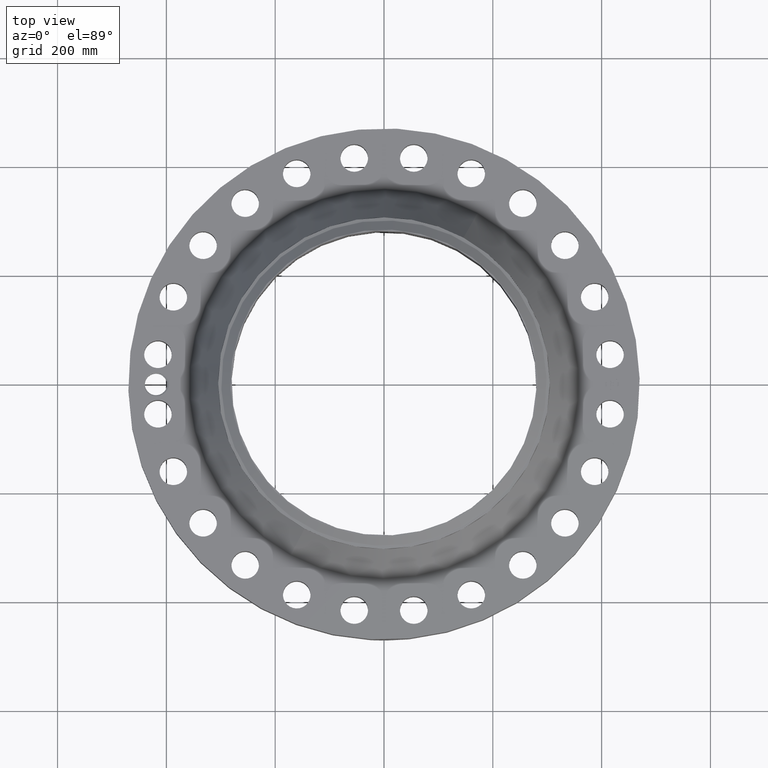
[diagram: clean part render]
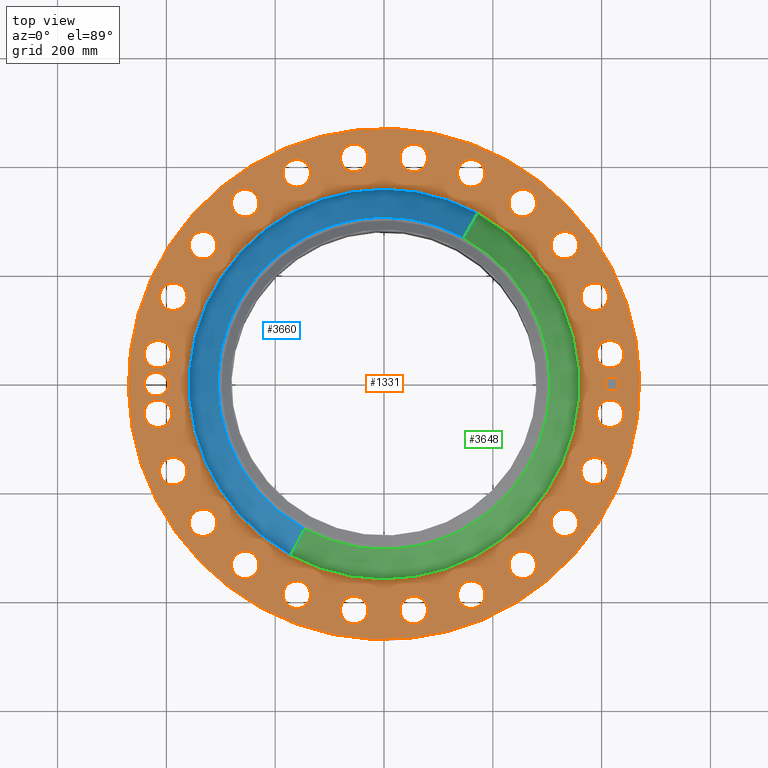
[diagram: same view with three faces highlighted in distinct colors, each labeled with its STEP entity id]
A machine part, top view with three faces highlighted in distinct colors.
Their STEP definitions:

[orange] entity #1331 — the highlighted planar face has unit normal (0, 0, -1).
#58=AXIS2_PLACEMENT_3D('Circle Axis2P3D',#56,#57,$) ;
#693=AXIS2_PLACEMENT_3D('Circle Axis2P3D',#691,#692,$) ;
#793=AXIS2_PLACEMENT_3D('Plane Axis2P3D',#790,#791,#792) ;
#847=AXIS2_PLACEMENT_3D('Circle Axis2P3D',#845,#846,$) ;
#854=AXIS2_PLACEMENT_3D('Circle Axis2P3D',#852,#853,$) ;
#865=AXIS2_PLACEMENT_3D('Circle Axis2P3D',#863,#864,$) ;
#874=AXIS2_PLACEMENT_3D('Circle Axis2P3D',#872,#873,$) ;
#883=AXIS2_PLACEMENT_3D('Circle Axis2P3D',#881,#882,$) ;
#892=AXIS2_PLACEMENT_3D('Circle Axis2P3D',#890,#891,$) ;
#901=AXIS2_PLACEMENT_3D('Circle Axis2P3D',#899,#900,$) ;
#910=AXIS2_PLACEMENT_3D('Circle Axis2P3D',#908,#909,$) ;
#919=AXIS2_PLACEMENT_3D('Circle Axis2P3D',#917,#918,$) ;
#928=AXIS2_PLACEMENT_3D('Circle Axis2P3D',#926,#927,$) ;
#937=AXIS2_PLACEMENT_3D('Circle Axis2P3D',#935,#936,$) ;
#946=AXIS2_PLACEMENT_3D('Circle Axis2P3D',#944,#945,$) ;
#955=AXIS2_PLACEMENT_3D('Circle Axis2P3D',#953,#954,$) ;
#964=AXIS2_PLACEMENT_3D('Circle Axis2P3D',#962,#963,$) ;
#973=AXIS2_PLACEMENT_3D('Circle Axis2P3D',#971,#972,$) ;
#982=AXIS2_PLACEMENT_3D('Circle Axis2P3D',#980,#981,$) ;
#991=AXIS2_PLACEMENT_3D('Circle Axis2P3D',#989,#990,$) ;
#1000=AXIS2_PLACEMENT_3D('Circle Axis2P3D',#998,#999,$) ;
#1009=AXIS2_PLACEMENT_3D('Circle Axis2P3D',#1007,#1008,$) ;
#1018=AXIS2_PLACEMENT_3D('Circle Axis2P3D',#1016,#1017,$) ;
#1027=AXIS2_PLACEMENT_3D('Circle Axis2P3D',#1025,#1026,$) ;
#1036=AXIS2_PLACEMENT_3D('Circle Axis2P3D',#1034,#1035,$) ;
#1045=AXIS2_PLACEMENT_3D('Circle Axis2P3D',#1043,#1044,$) ;
#1054=AXIS2_PLACEMENT_3D('Circle Axis2P3D',#1052,#1053,$) ;
#1063=AXIS2_PLACEMENT_3D('Circle Axis2P3D',#1061,#1062,$) ;
#1072=AXIS2_PLACEMENT_3D('Circle Axis2P3D',#1070,#1071,$) ;
#1081=AXIS2_PLACEMENT_3D('Circle Axis2P3D',#1079,#1080,$) ;
#1090=AXIS2_PLACEMENT_3D('Circle Axis2P3D',#1088,#1089,$) ;
#1099=AXIS2_PLACEMENT_3D('Circle Axis2P3D',#1097,#1098,$) ;
#1108=AXIS2_PLACEMENT_3D('Circle Axis2P3D',#1106,#1107,$) ;
#1117=AXIS2_PLACEMENT_3D('Circle Axis2P3D',#1115,#1116,$) ;
#1126=AXIS2_PLACEMENT_3D('Circle Axis2P3D',#1124,#1125,$) ;
#1135=AXIS2_PLACEMENT_3D('Circle Axis2P3D',#1133,#1134,$) ;
#1144=AXIS2_PLACEMENT_3D('Circle Axis2P3D',#1142,#1143,$) ;
#1153=AXIS2_PLACEMENT_3D('Circle Axis2P3D',#1151,#1152,$) ;
#1162=AXIS2_PLACEMENT_3D('Circle Axis2P3D',#1160,#1161,$) ;
#1171=AXIS2_PLACEMENT_3D('Circle Axis2P3D',#1169,#1170,$) ;
#1180=AXIS2_PLACEMENT_3D('Circle Axis2P3D',#1178,#1179,$) ;
#1189=AXIS2_PLACEMENT_3D('Circle Axis2P3D',#1187,#1188,$) ;
#1198=AXIS2_PLACEMENT_3D('Circle Axis2P3D',#1196,#1197,$) ;
#1207=AXIS2_PLACEMENT_3D('Circle Axis2P3D',#1205,#1206,$) ;
#1216=AXIS2_PLACEMENT_3D('Circle Axis2P3D',#1214,#1215,$) ;
#1225=AXIS2_PLACEMENT_3D('Circle Axis2P3D',#1223,#1224,$) ;
#1234=AXIS2_PLACEMENT_3D('Circle Axis2P3D',#1232,#1233,$) ;
#1243=AXIS2_PLACEMENT_3D('Circle Axis2P3D',#1241,#1242,$) ;
#1252=AXIS2_PLACEMENT_3D('Circle Axis2P3D',#1250,#1251,$) ;
#1261=AXIS2_PLACEMENT_3D('Circle Axis2P3D',#1259,#1260,$) ;
#1270=AXIS2_PLACEMENT_3D('Circle Axis2P3D',#1268,#1269,$) ;
#1279=AXIS2_PLACEMENT_3D('Circle Axis2P3D',#1277,#1278,$) ;
#1288=AXIS2_PLACEMENT_3D('Circle Axis2P3D',#1286,#1287,$) ;
#1297=AXIS2_PLACEMENT_3D('Circle Axis2P3D',#1295,#1296,$) ;
#1306=AXIS2_PLACEMENT_3D('Circle Axis2P3D',#1304,#1305,$) ;
#1315=AXIS2_PLACEMENT_3D('Circle Axis2P3D',#1313,#1314,$) ;
#1324=AXIS2_PLACEMENT_3D('Circle Axis2P3D',#1322,#1323,$) ;
#53=CARTESIAN_POINT('Vertex',(-8.86937246421,-16.235277395,4.25000000002)) ;
#56=CARTESIAN_POINT('Axis2P3D Location',(0.,0.,4.25000000002)) ;
#60=CARTESIAN_POINT('Vertex',(8.86937246421,16.235277395,4.25000000002)) ;
#691=CARTESIAN_POINT('Axis2P3D Location',(0.,0.,4.25000000002)) ;
#790=CARTESIAN_POINT('Axis2P3D Location',(0.,18.5000000001,4.25000000002)) ;
#800=CARTESIAN_POINT('Control Point',(-15.5625000001,-2.23792987641E-015,4.25000000002)) ;
#801=CARTESIAN_POINT('Control Point',(-15.5658486118,0.0752397331611,4.25000000002)) ;
#802=CARTESIAN_POINT('Control Point',(-15.5767532061,0.149986999675,4.25000000002)) ;
#803=CARTESIAN_POINT('Control Point',(-15.5951503556,0.223216978299,4.25000000002)) ;
#804=CARTESIAN_POINT('Control Point',(-15.6463729581,0.364618328847,4.25000000002)) ;
#805=CARTESIAN_POINT('Control Point',(-15.7245963109,0.49227424773,4.25000000002)) ;
#806=CARTESIAN_POINT('Control Point',(-15.7699947014,0.551754606041,4.25000000002)) ;
#807=CARTESIAN_POINT('Control Point',(-15.8720310465,0.660346585055,4.25000000002)) ;
#808=CARTESIAN_POINT('Control Point',(-15.9934278606,0.745630400099,4.25000000002)) ;
#809=CARTESIAN_POINT('Control Point',(-16.0581601455,0.78177653975,4.25000000002)) ;
#810=CARTESIAN_POINT('Control Point',(-16.1712136608,0.830357940917,4.25000000002)) ;
#811=CARTESIAN_POINT('Control Point',(-16.290102158,0.858710423939,4.25000000002)) ;
#812=CARTESIAN_POINT('Control Point',(-16.3382768054,0.866725028394,4.25000000002)) ;
#813=CARTESIAN_POINT('Control Point',(-16.4180331567,0.874371070311,4.25000000002)) ;
#814=CARTESIAN_POINT('Control Point',(-16.4977855256,0.872912340698,4.25000000002)) ;
#815=CARTESIAN_POINT('Control Point',(-16.5289669807,0.870941301126,4.25000000002)) ;
#816=CARTESIAN_POINT('Control Point',(-16.5599797145,0.867579220416,4.25000000002)) ;
#817=CARTESIAN_POINT('Control Point',(-16.5907413594,0.862841680557,4.25000000002)) ;
#818=CARTESIAN_POINT('Vertex',(-15.5625000001,-2.23792987641E-015,4.25000000002)) ;
#820=CARTESIAN_POINT('Vertex',(-16.5907413594,0.862841680557,4.25000000002)) ;
#824=CARTESIAN_POINT('Control Point',(-15.5625000001,0.,4.25000000002)) ;
#825=CARTESIAN_POINT('Control Point',(-15.5658491807,-0.0752525151098,4.25000000002)) ;
#826=CARTESIAN_POINT('Control Point',(-15.5767569074,-0.150012395308,4.25000000002)) ;
#827=CARTESIAN_POINT('Control Point',(-15.5951533094,-0.223239987657,4.25000000002)) ;
#828=CARTESIAN_POINT('Control Point',(-15.6463784544,-0.364651733392,4.25000000002)) ;
#829=CARTESIAN_POINT('Control Point',(-15.7245736828,-0.492256823696,4.25000000002)) ;
#830=CARTESIAN_POINT('Control Point',(-15.7699609339,-0.551715870215,4.25000000002)) ;
#831=CARTESIAN_POINT('Control Point',(-15.8719890013,-0.66030245182,4.25000000002)) ;
#832=CARTESIAN_POINT('Control Point',(-15.9933301524,-0.745568300543,4.25000000002)) ;
#833=CARTESIAN_POINT('Control Point',(-16.0580543193,-0.781724351964,4.25000000002)) ;
#834=CARTESIAN_POINT('Control Point',(-16.1936450141,-0.840027215184,4.25000000002)) ;
#835=CARTESIAN_POINT('Control Point',(-16.3376796608,-0.869225054135,4.25000000002)) ;
#836=CARTESIAN_POINT('Control Point',(-16.4107745553,-0.87625079545,4.25000000002)) ;
#837=CARTESIAN_POINT('Control Point',(-16.4909460702,-0.875557265606,4.25000000002)) ;
#838=CARTESIAN_POINT('Control Point',(-16.5699063854,-0.865829464516,4.25000000002)) ;
#839=CARTESIAN_POINT('Control Point',(-16.5768185622,-0.864907315477,4.25000000002)) ;
#840=CARTESIAN_POINT('Control Point',(-16.5837195816,-0.86391598773,4.25000000002)) ;
#841=CARTESIAN_POINT('Control Point',(-16.5906085073,-0.86285564171,4.25000000002)) ;
#842=CARTESIAN_POINT('Vertex',(-16.5906085073,-0.86285564171,4.25000000002)) ;
#845=CARTESIAN_POINT('Axis2P3D Location',(-16.5000000001,2.01413688877E-014,4.25000000002)) ;
#849=CARTESIAN_POINT('Vertex',(-17.2613906308,0.415949597295,4.25000000002)) ;
#852=CARTESIAN_POINT('Axis2P3D Location',(-16.5000000001,2.01413688877E-014,4.25000000002)) ;
#863=CARTESIAN_POINT('Axis2P3D Location',(16.3588402127,-2.15368217164,4.25000000002)) ;
#867=CARTESIAN_POINT('Vertex',(15.4812576508,-1.67425663303,4.25000000002)) ;
#869=CARTESIAN_POINT('Vertex',(17.2364227746,-2.63310771025,4.25000000002)) ;
#872=CARTESIAN_POINT('Axis2P3D Location',(16.3588402127,-2.15368217164,4.25000000002)) ;
#881=CARTESIAN_POINT('Axis2P3D Location',(0.,0.,4.25000000002)) ;
#885=CARTESIAN_POINT('Vertex',(-6.80280215047,-12.4524458097,4.25000000002)) ;
#887=CARTESIAN_POINT('Vertex',(6.80280215047,12.4524458097,4.25000000002)) ;
#890=CARTESIAN_POINT('Axis2P3D Location',(0.,0.,4.25000000002)) ;
#899=CARTESIAN_POINT('Axis2P3D Location',(15.2440122865,-6.31427663405,4.25000000002)) ;
#903=CARTESIAN_POINT('Vertex',(15.9676074876,-7.00450122424,4.25000000002)) ;
#905=CARTESIAN_POINT('Vertex',(14.5204170854,-5.62405204386,4.25000000002)) ;
#908=CARTESIAN_POINT('Axis2P3D Location',(15.2440122865,-6.31427663405,4.25000000002)) ;
#917=CARTESIAN_POINT('Axis2P3D Location',(13.0903301149,-10.0445635787,4.25000000002)) ;
#921=CARTESIAN_POINT('Vertex',(13.6106261381,-10.8985495553,4.25000000002)) ;
#923=CARTESIAN_POINT('Vertex',(12.5700340916,-9.19057760208,4.25000000002)) ;
#926=CARTESIAN_POINT('Axis2P3D Location',(13.0903301149,-10.0445635787,4.25000000002)) ;
#935=CARTESIAN_POINT('Axis2P3D Location',(10.0445635787,-13.0903301149,4.25000000002)) ;
#939=CARTESIAN_POINT('Vertex',(10.3261031098,-14.0498797448,4.25000000002)) ;
#941=CARTESIAN_POINT('Vertex',(9.76302404754,-12.1307804849,4.25000000002)) ;
#944=CARTESIAN_POINT('Axis2P3D Location',(10.0445635787,-13.0903301149,4.25000000002)) ;
#953=CARTESIAN_POINT('Axis2P3D Location',(6.31427663405,-15.2440122865,4.25000000002)) ;
#957=CARTESIAN_POINT('Vertex',(6.33787321934,-16.2437338483,4.25000000002)) ;
#959=CARTESIAN_POINT('Vertex',(6.29068004876,-14.2442907247,4.25000000002)) ;
#962=CARTESIAN_POINT('Axis2P3D Location',(6.31427663405,-15.2440122865,4.25000000002)) ;
#971=CARTESIAN_POINT('Axis2P3D Location',(2.15368217164,-16.3588402127,4.25000000002)) ;
#975=CARTESIAN_POINT('Vertex',(1.91772774279,-17.3306043341,4.25000000002)) ;
#977=CARTESIAN_POINT('Vertex',(2.38963660049,-15.3870760914,4.25000000002)) ;
#980=CARTESIAN_POINT('Axis2P3D Location',(2.15368217164,-16.3588402127,4.25000000002)) ;
#989=CARTESIAN_POINT('Axis2P3D Location',(-2.15368217164,-16.3588402127,4.25000000002)) ;
#993=CARTESIAN_POINT('Vertex',(-2.63310771025,-17.2364227746,4.25000000002)) ;
#995=CARTESIAN_POINT('Vertex',(-1.67425663303,-15.4812576508,4.25000000002)) ;
#998=CARTESIAN_POINT('Axis2P3D Location',(-2.15368217164,-16.3588402127,4.25000000002)) ;
#1007=CARTESIAN_POINT('Axis2P3D Location',(-6.31427663405,-15.2440122865,4.25000000002)) ;
#1011=CARTESIAN_POINT('Vertex',(-7.00450122424,-15.9676074876,4.25000000002)) ;
#1013=CARTESIAN_POINT('Vertex',(-5.62405204386,-14.5204170854,4.25000000002)) ;
#1016=CARTESIAN_POINT('Axis2P3D Location',(-6.31427663405,-15.2440122865,4.25000000002)) ;
#1025=CARTESIAN_POINT('Axis2P3D Location',(-10.0445635787,-13.0903301149,4.25000000002)) ;
#1029=CARTESIAN_POINT('Vertex',(-10.8985495553,-13.6106261381,4.25000000002)) ;
#1031=CARTESIAN_POINT('Vertex',(-9.19057760208,-12.5700340916,4.25000000002)) ;
#1034=CARTESIAN_POINT('Axis2P3D Location',(-10.0445635787,-13.0903301149,4.25000000002)) ;
#1043=CARTESIAN_POINT('Axis2P3D Location',(-13.0903301149,-10.0445635787,4.25000000002)) ;
#1047=CARTESIAN_POINT('Vertex',(-14.0498797448,-10.3261031098,4.25000000002)) ;
#1049=CARTESIAN_POINT('Vertex',(-12.1307804849,-9.76302404754,4.25000000002)) ;
#1052=CARTESIAN_POINT('Axis2P3D Location',(-13.0903301149,-10.0445635787,4.25000000002)) ;
#1061=CARTESIAN_POINT('Axis2P3D Location',(-15.2440122865,-6.31427663405,4.25000000002)) ;
#1065=CARTESIAN_POINT('Vertex',(-16.2437338483,-6.33787321934,4.25000000002)) ;
#1067=CARTESIAN_POINT('Vertex',(-14.2442907247,-6.29068004876,4.25000000002)) ;
#1070=CARTESIAN_POINT('Axis2P3D Location',(-15.2440122865,-6.31427663405,4.25000000002)) ;
#1079=CARTESIAN_POINT('Axis2P3D Location',(-16.3588402127,-2.15368217164,4.25000000002)) ;
#1083=CARTESIAN_POINT('Vertex',(-17.3306043341,-1.91772774279,4.25000000002)) ;
#1085=CARTESIAN_POINT('Vertex',(-15.3870760914,-2.38963660049,4.25000000002)) ;
#1088=CARTESIAN_POINT('Axis2P3D Location',(-16.3588402127,-2.15368217164,4.25000000002)) ;
#1097=CARTESIAN_POINT('Axis2P3D Location',(-16.3588402127,2.15368217164,4.25000000002)) ;
#1101=CARTESIAN_POINT('Vertex',(-17.2364227746,2.63310771025,4.25000000002)) ;
#1103=CARTESIAN_POINT('Vertex',(-15.4812576508,1.67425663303,4.25000000002)) ;
#1106=CARTESIAN_POINT('Axis2P3D Location',(-16.3588402127,2.15368217164,4.25000000002)) ;
#1115=CARTESIAN_POINT('Axis2P3D Location',(-15.2440122865,6.31427663405,4.25000000002)) ;
#1119=CARTESIAN_POINT('Vertex',(-15.9676074876,7.00450122424,4.25000000002)) ;
#1121=CARTESIAN_POINT('Vertex',(-14.5204170854,5.62405204386,4.25000000002)) ;
#1124=CARTESIAN_POINT('Axis2P3D Location',(-15.2440122865,6.31427663405,4.25000000002)) ;
#1133=CARTESIAN_POINT('Axis2P3D Location',(-13.0903301149,10.0445635787,4.25000000002)) ;
#1137=CARTESIAN_POINT('Vertex',(-13.6106261381,10.8985495553,4.25000000002)) ;
#1139=CARTESIAN_POINT('Vertex',(-12.5700340916,9.19057760208,4.25000000002)) ;
#1142=CARTESIAN_POINT('Axis2P3D Location',(-13.0903301149,10.0445635787,4.25000000002)) ;
#1151=CARTESIAN_POINT('Axis2P3D Location',(-10.0445635787,13.0903301149,4.25000000002)) ;
#1155=CARTESIAN_POINT('Vertex',(-10.3261031098,14.0498797448,4.25000000002)) ;
#1157=CARTESIAN_POINT('Vertex',(-9.76302404754,12.1307804849,4.25000000002)) ;
#1160=CARTESIAN_POINT('Axis2P3D Location',(-10.0445635787,13.0903301149,4.25000000002)) ;
#1169=CARTESIAN_POINT('Axis2P3D Location',(-6.31427663405,15.2440122865,4.25000000002)) ;
#1173=CARTESIAN_POINT('Vertex',(-6.33787321934,16.2437338483,4.25000000002)) ;
#1175=CARTESIAN_POINT('Vertex',(-6.29068004876,14.2442907247,4.25000000002)) ;
#1178=CARTESIAN_POINT('Axis2P3D Location',(-6.31427663405,15.2440122865,4.25000000002)) ;
#1187=CARTESIAN_POINT('Axis2P3D Location',(-2.15368217164,16.3588402127,4.25000000002)) ;
#1191=CARTESIAN_POINT('Vertex',(-1.91772774279,17.3306043341,4.25000000002)) ;
#1193=CARTESIAN_POINT('Vertex',(-2.38963660049,15.3870760914,4.25000000002)) ;
#1196=CARTESIAN_POINT('Axis2P3D Location',(-2.15368217164,16.3588402127,4.25000000002)) ;
#1205=CARTESIAN_POINT('Axis2P3D Location',(2.15368217164,16.3588402127,4.25000000002)) ;
#1209=CARTESIAN_POINT('Vertex',(2.63310771025,17.2364227746,4.25000000002)) ;
#1211=CARTESIAN_POINT('Vertex',(1.67425663303,15.4812576508,4.25000000002)) ;
#1214=CARTESIAN_POINT('Axis2P3D Location',(2.15368217164,16.3588402127,4.25000000002)) ;
#1223=CARTESIAN_POINT('Axis2P3D Location',(6.31427663405,15.2440122865,4.25000000002)) ;
#1227=CARTESIAN_POINT('Vertex',(7.00450122424,15.9676074876,4.25000000002)) ;
#1229=CARTESIAN_POINT('Vertex',(5.62405204386,14.5204170854,4.25000000002)) ;
#1232=CARTESIAN_POINT('Axis2P3D Location',(6.31427663405,15.2440122865,4.25000000002)) ;
#1241=CARTESIAN_POINT('Axis2P3D Location',(10.0445635787,13.0903301149,4.25000000002)) ;
#1245=CARTESIAN_POINT('Vertex',(10.8985495553,13.6106261381,4.25000000002)) ;
#1247=CARTESIAN_POINT('Vertex',(9.19057760208,12.5700340916,4.25000000002)) ;
#1250=CARTESIAN_POINT('Axis2P3D Location',(10.0445635787,13.0903301149,4.25000000002)) ;
#1259=CARTESIAN_POINT('Axis2P3D Location',(13.0903301149,10.0445635787,4.25000000002)) ;
#1263=CARTESIAN_POINT('Vertex',(14.0498797448,10.3261031098,4.25000000002)) ;
#1265=CARTESIAN_POINT('Vertex',(12.1307804849,9.76302404754,4.25000000002)) ;
#1268=CARTESIAN_POINT('Axis2P3D Location',(13.0903301149,10.0445635787,4.25000000002)) ;
#1277=CARTESIAN_POINT('Axis2P3D Location',(15.2440122865,6.31427663405,4.25000000002)) ;
#1281=CARTESIAN_POINT('Vertex',(16.2437338483,6.33787321934,4.25000000002)) ;
#1283=CARTESIAN_POINT('Vertex',(14.2442907247,6.29068004876,4.25000000002)) ;
#1286=CARTESIAN_POINT('Axis2P3D Location',(15.2440122865,6.31427663405,4.25000000002)) ;
#1295=CARTESIAN_POINT('Axis2P3D Location',(16.3588402127,2.15368217164,4.25000000002)) ;
#1299=CARTESIAN_POINT('Vertex',(17.3306043341,1.91772774279,4.25000000002)) ;
#1301=CARTESIAN_POINT('Vertex',(15.3870760914,2.38963660049,4.25000000002)) ;
#1304=CARTESIAN_POINT('Axis2P3D Location',(16.3588402127,2.15368217164,4.25000000002)) ;
#1313=CARTESIAN_POINT('Axis2P3D Location',(16.5000000001,0.,4.25000000002)) ;
#1317=CARTESIAN_POINT('Vertex',(16.5000000001,0.499999995002,4.25000000002)) ;
#1319=CARTESIAN_POINT('Vertex',(16.5000000001,-0.499999995002,4.25000000002)) ;
#1322=CARTESIAN_POINT('Axis2P3D Location',(16.5000000001,0.,4.25000000002)) ;
#57=DIRECTION('Axis2P3D Direction',(0.,0.,-0.0393700787402)) ;
#692=DIRECTION('Axis2P3D Direction',(0.,0.,-0.0393700787402)) ;
#791=DIRECTION('Axis2P3D Direction',(0.,0.,-0.0393700787402)) ;
#792=DIRECTION('Axis2P3D XDirection',(0.0393700787402,0.,0.)) ;
#846=DIRECTION('Axis2P3D Direction',(0.,0.,-0.0393700787402)) ;
#853=DIRECTION('Axis2P3D Direction',(0.,0.,-0.0393700787402)) ;
#864=DIRECTION('Axis2P3D Direction',(0.,0.,-0.0393700787402)) ;
#873=DIRECTION('Axis2P3D Direction',(0.,0.,-0.0393700787402)) ;
#882=DIRECTION('Axis2P3D Direction',(0.,0.,-0.0393700787402)) ;
#891=DIRECTION('Axis2P3D Direction',(0.,0.,-0.0393700787402)) ;
#900=DIRECTION('Axis2P3D Direction',(0.,0.,-0.0393700787402)) ;
#909=DIRECTION('Axis2P3D Direction',(0.,0.,-0.0393700787402)) ;
#918=DIRECTION('Axis2P3D Direction',(0.,0.,-0.0393700787402)) ;
#927=DIRECTION('Axis2P3D Direction',(0.,0.,-0.0393700787402)) ;
#936=DIRECTION('Axis2P3D Direction',(0.,0.,-0.0393700787402)) ;
#945=DIRECTION('Axis2P3D Direction',(0.,0.,-0.0393700787402)) ;
#954=DIRECTION('Axis2P3D Direction',(0.,0.,-0.0393700787402)) ;
#963=DIRECTION('Axis2P3D Direction',(0.,0.,-0.0393700787402)) ;
#972=DIRECTION('Axis2P3D Direction',(0.,0.,-0.0393700787402)) ;
#981=DIRECTION('Axis2P3D Direction',(0.,0.,-0.0393700787402)) ;
#990=DIRECTION('Axis2P3D Direction',(0.,0.,-0.0393700787402)) ;
#999=DIRECTION('Axis2P3D Direction',(0.,0.,-0.0393700787402)) ;
#1008=DIRECTION('Axis2P3D Direction',(0.,0.,-0.0393700787402)) ;
#1017=DIRECTION('Axis2P3D Direction',(0.,0.,-0.0393700787402)) ;
#1026=DIRECTION('Axis2P3D Direction',(0.,0.,-0.0393700787402)) ;
#1035=DIRECTION('Axis2P3D Direction',(0.,0.,-0.0393700787402)) ;
#1044=DIRECTION('Axis2P3D Direction',(0.,0.,-0.0393700787402)) ;
#1053=DIRECTION('Axis2P3D Direction',(0.,0.,-0.0393700787402)) ;
#1062=DIRECTION('Axis2P3D Direction',(0.,0.,-0.0393700787402)) ;
#1071=DIRECTION('Axis2P3D Direction',(0.,0.,-0.0393700787402)) ;
#1080=DIRECTION('Axis2P3D Direction',(0.,0.,-0.0393700787402)) ;
#1089=DIRECTION('Axis2P3D Direction',(0.,0.,-0.0393700787402)) ;
#1098=DIRECTION('Axis2P3D Direction',(0.,0.,-0.0393700787402)) ;
#1107=DIRECTION('Axis2P3D Direction',(0.,0.,-0.0393700787402)) ;
#1116=DIRECTION('Axis2P3D Direction',(0.,0.,-0.0393700787402)) ;
#1125=DIRECTION('Axis2P3D Direction',(0.,0.,-0.0393700787402)) ;
#1134=DIRECTION('Axis2P3D Direction',(0.,0.,-0.0393700787402)) ;
#1143=DIRECTION('Axis2P3D Direction',(0.,0.,-0.0393700787402)) ;
#1152=DIRECTION('Axis2P3D Direction',(0.,0.,-0.0393700787402)) ;
#1161=DIRECTION('Axis2P3D Direction',(0.,0.,-0.0393700787402)) ;
#1170=DIRECTION('Axis2P3D Direction',(0.,0.,-0.0393700787402)) ;
#1179=DIRECTION('Axis2P3D Direction',(0.,0.,-0.0393700787402)) ;
#1188=DIRECTION('Axis2P3D Direction',(0.,0.,-0.0393700787402)) ;
#1197=DIRECTION('Axis2P3D Direction',(0.,0.,-0.0393700787402)) ;
#1206=DIRECTION('Axis2P3D Direction',(0.,0.,-0.0393700787402)) ;
#1215=DIRECTION('Axis2P3D Direction',(0.,0.,-0.0393700787402)) ;
#1224=DIRECTION('Axis2P3D Direction',(0.,0.,-0.0393700787402)) ;
#1233=DIRECTION('Axis2P3D Direction',(0.,0.,-0.0393700787402)) ;
#1242=DIRECTION('Axis2P3D Direction',(0.,0.,-0.0393700787402)) ;
#1251=DIRECTION('Axis2P3D Direction',(0.,0.,-0.0393700787402)) ;
#1260=DIRECTION('Axis2P3D Direction',(0.,0.,-0.0393700787402)) ;
#1269=DIRECTION('Axis2P3D Direction',(0.,0.,-0.0393700787402)) ;
#1278=DIRECTION('Axis2P3D Direction',(0.,0.,-0.0393700787402)) ;
#1287=DIRECTION('Axis2P3D Direction',(0.,0.,-0.0393700787402)) ;
#1296=DIRECTION('Axis2P3D Direction',(0.,0.,-0.0393700787402)) ;
#1305=DIRECTION('Axis2P3D Direction',(0.,0.,-0.0393700787402)) ;
#1314=DIRECTION('Axis2P3D Direction',(0.,0.,-0.0393700787402)) ;
#1323=DIRECTION('Axis2P3D Direction',(0.,0.,-0.0393700787402)) ;
#796=ORIENTED_EDGE('',*,*,#695,.F.) ;
#797=ORIENTED_EDGE('',*,*,#62,.F.) ;
#858=ORIENTED_EDGE('',*,*,#822,.F.) ;
#859=ORIENTED_EDGE('',*,*,#844,.T.) ;
#860=ORIENTED_EDGE('',*,*,#851,.T.) ;
#861=ORIENTED_EDGE('',*,*,#856,.T.) ;
#878=ORIENTED_EDGE('',*,*,#871,.T.) ;
#879=ORIENTED_EDGE('',*,*,#876,.T.) ;
#896=ORIENTED_EDGE('',*,*,#889,.T.) ;
#897=ORIENTED_EDGE('',*,*,#894,.T.) ;
#914=ORIENTED_EDGE('',*,*,#907,.T.) ;
#915=ORIENTED_EDGE('',*,*,#912,.T.) ;
#932=ORIENTED_EDGE('',*,*,#925,.T.) ;
#933=ORIENTED_EDGE('',*,*,#930,.T.) ;
#950=ORIENTED_EDGE('',*,*,#943,.T.) ;
#951=ORIENTED_EDGE('',*,*,#948,.T.) ;
#968=ORIENTED_EDGE('',*,*,#961,.T.) ;
#969=ORIENTED_EDGE('',*,*,#966,.T.) ;
#986=ORIENTED_EDGE('',*,*,#979,.T.) ;
#987=ORIENTED_EDGE('',*,*,#984,.T.) ;
#1004=ORIENTED_EDGE('',*,*,#997,.T.) ;
#1005=ORIENTED_EDGE('',*,*,#1002,.T.) ;
#1022=ORIENTED_EDGE('',*,*,#1015,.T.) ;
#1023=ORIENTED_EDGE('',*,*,#1020,.T.) ;
#1040=ORIENTED_EDGE('',*,*,#1033,.T.) ;
#1041=ORIENTED_EDGE('',*,*,#1038,.T.) ;
#1058=ORIENTED_EDGE('',*,*,#1051,.T.) ;
#1059=ORIENTED_EDGE('',*,*,#1056,.T.) ;
#1076=ORIENTED_EDGE('',*,*,#1069,.T.) ;
#1077=ORIENTED_EDGE('',*,*,#1074,.T.) ;
#1094=ORIENTED_EDGE('',*,*,#1087,.T.) ;
#1095=ORIENTED_EDGE('',*,*,#1092,.T.) ;
#1112=ORIENTED_EDGE('',*,*,#1105,.T.) ;
#1113=ORIENTED_EDGE('',*,*,#1110,.T.) ;
#1130=ORIENTED_EDGE('',*,*,#1123,.T.) ;
#1131=ORIENTED_EDGE('',*,*,#1128,.T.) ;
#1148=ORIENTED_EDGE('',*,*,#1141,.T.) ;
#1149=ORIENTED_EDGE('',*,*,#1146,.T.) ;
#1166=ORIENTED_EDGE('',*,*,#1159,.T.) ;
#1167=ORIENTED_EDGE('',*,*,#1164,.T.) ;
#1184=ORIENTED_EDGE('',*,*,#1177,.T.) ;
#1185=ORIENTED_EDGE('',*,*,#1182,.T.) ;
#1202=ORIENTED_EDGE('',*,*,#1195,.T.) ;
#1203=ORIENTED_EDGE('',*,*,#1200,.T.) ;
#1220=ORIENTED_EDGE('',*,*,#1213,.T.) ;
#1221=ORIENTED_EDGE('',*,*,#1218,.T.) ;
#1238=ORIENTED_EDGE('',*,*,#1231,.T.) ;
#1239=ORIENTED_EDGE('',*,*,#1236,.T.) ;
#1256=ORIENTED_EDGE('',*,*,#1249,.T.) ;
#1257=ORIENTED_EDGE('',*,*,#1254,.T.) ;
#1274=ORIENTED_EDGE('',*,*,#1267,.T.) ;
#1275=ORIENTED_EDGE('',*,*,#1272,.T.) ;
#1292=ORIENTED_EDGE('',*,*,#1285,.T.) ;
#1293=ORIENTED_EDGE('',*,*,#1290,.T.) ;
#1310=ORIENTED_EDGE('',*,*,#1303,.T.) ;
#1311=ORIENTED_EDGE('',*,*,#1308,.T.) ;
#1328=ORIENTED_EDGE('',*,*,#1321,.T.) ;
#1329=ORIENTED_EDGE('',*,*,#1326,.T.) ;
#862=FACE_BOUND('',#857,.T.) ;
#880=FACE_BOUND('',#877,.T.) ;
#898=FACE_BOUND('',#895,.T.) ;
#916=FACE_BOUND('',#913,.T.) ;
#934=FACE_BOUND('',#931,.T.) ;
#952=FACE_BOUND('',#949,.T.) ;
#970=FACE_BOUND('',#967,.T.) ;
#988=FACE_BOUND('',#985,.T.) ;
#1006=FACE_BOUND('',#1003,.T.) ;
#1024=FACE_BOUND('',#1021,.T.) ;
#1042=FACE_BOUND('',#1039,.T.) ;
#1060=FACE_BOUND('',#1057,.T.) ;
#1078=FACE_BOUND('',#1075,.T.) ;
#1096=FACE_BOUND('',#1093,.T.) ;
#1114=FACE_BOUND('',#1111,.T.) ;
#1132=FACE_BOUND('',#1129,.T.) ;
#1150=FACE_BOUND('',#1147,.T.) ;
#1168=FACE_BOUND('',#1165,.T.) ;
#1186=FACE_BOUND('',#1183,.T.) ;
#1204=FACE_BOUND('',#1201,.T.) ;
#1222=FACE_BOUND('',#1219,.T.) ;
#1240=FACE_BOUND('',#1237,.T.) ;
#1258=FACE_BOUND('',#1255,.T.) ;
#1276=FACE_BOUND('',#1273,.T.) ;
#1294=FACE_BOUND('',#1291,.T.) ;
#1312=FACE_BOUND('',#1309,.T.) ;
#1330=FACE_BOUND('',#1327,.T.) ;
#1331=ADVANCED_FACE('PartBody',(#798,#862,#880,#898,#916,#934,#952,#970,#988,#1006,#1024,#1042,#1060,#1078,#1096,#1114,#1132,#1150,#1168,#1186,#1204,#1222,#1240,#1258,#1276,#1294,#1312,#1330),#794,.F.) ;
#799=B_SPLINE_CURVE_WITH_KNOTS('',5,(#800,#801,#802,#803,#804,#805,#806,#807,#808,#809,#810,#811,#812,#813,#814,#815,#816,#817),.UNSPECIFIED.,.F.,.U.,(6,3,3,3,3,6),(0.,13.081218837,26.1615153178,39.2351208864,47.9468145475,53.5645460411),.UNSPECIFIED.) ;
#823=B_SPLINE_CURVE_WITH_KNOTS('',5,(#824,#825,#826,#827,#828,#829,#830,#831,#832,#833,#834,#835,#836,#837,#838,#839,#840,#841),.UNSPECIFIED.,.F.,.U.,(6,3,3,3,3,6),(0.,13.0834411135,26.1743770102,39.2706403216,52.3527996962,53.6099155024),.UNSPECIFIED.) ;
#59=CIRCLE('generated circle',#58,18.5000000001) ;
#694=CIRCLE('generated circle',#693,18.5000000001) ;
#848=CIRCLE('generated circle',#847,0.867600000003) ;
#855=CIRCLE('generated circle',#854,0.867600000003) ;
#866=CIRCLE('generated circle',#865,1.) ;
#875=CIRCLE('generated circle',#874,1.) ;
#884=CIRCLE('generated circle',#883,14.1894863805) ;
#893=CIRCLE('generated circle',#892,14.1894863805) ;
#902=CIRCLE('generated circle',#901,1.) ;
#911=CIRCLE('generated circle',#910,1.) ;
#920=CIRCLE('generated circle',#919,1.) ;
#929=CIRCLE('generated circle',#928,1.) ;
#938=CIRCLE('generated circle',#937,1.) ;
#947=CIRCLE('generated circle',#946,1.) ;
#956=CIRCLE('generated circle',#955,1.) ;
#965=CIRCLE('generated circle',#964,1.) ;
#974=CIRCLE('generated circle',#973,1.) ;
#983=CIRCLE('generated circle',#982,1.) ;
#992=CIRCLE('generated circle',#991,1.) ;
#1001=CIRCLE('generated circle',#1000,1.) ;
#1010=CIRCLE('generated circle',#1009,1.) ;
#1019=CIRCLE('generated circle',#1018,1.) ;
#1028=CIRCLE('generated circle',#1027,1.) ;
#1037=CIRCLE('generated circle',#1036,1.) ;
#1046=CIRCLE('generated circle',#1045,1.) ;
#1055=CIRCLE('generated circle',#1054,1.) ;
#1064=CIRCLE('generated circle',#1063,1.) ;
#1073=CIRCLE('generated circle',#1072,1.) ;
#1082=CIRCLE('generated circle',#1081,1.) ;
#1091=CIRCLE('generated circle',#1090,1.) ;
#1100=CIRCLE('generated circle',#1099,1.) ;
#1109=CIRCLE('generated circle',#1108,1.) ;
#1118=CIRCLE('generated circle',#1117,1.) ;
#1127=CIRCLE('generated circle',#1126,1.) ;
#1136=CIRCLE('generated circle',#1135,1.) ;
#1145=CIRCLE('generated circle',#1144,1.) ;
#1154=CIRCLE('generated circle',#1153,1.) ;
#1163=CIRCLE('generated circle',#1162,1.) ;
#1172=CIRCLE('generated circle',#1171,1.) ;
#1181=CIRCLE('generated circle',#1180,1.) ;
#1190=CIRCLE('generated circle',#1189,1.) ;
#1199=CIRCLE('generated circle',#1198,1.) ;
#1208=CIRCLE('generated circle',#1207,1.) ;
#1217=CIRCLE('generated circle',#1216,1.) ;
#1226=CIRCLE('generated circle',#1225,1.) ;
#1235=CIRCLE('generated circle',#1234,1.) ;
#1244=CIRCLE('generated circle',#1243,1.) ;
#1253=CIRCLE('generated circle',#1252,1.) ;
#1262=CIRCLE('generated circle',#1261,1.) ;
#1271=CIRCLE('generated circle',#1270,1.) ;
#1280=CIRCLE('generated circle',#1279,1.) ;
#1289=CIRCLE('generated circle',#1288,1.) ;
#1298=CIRCLE('generated circle',#1297,1.) ;
#1307=CIRCLE('generated circle',#1306,1.) ;
#1316=CIRCLE('generated circle',#1315,0.499999995002) ;
#1325=CIRCLE('generated circle',#1324,0.499999995002) ;
#62=EDGE_CURVE('',#54,#61,#59,.T.) ;
#695=EDGE_CURVE('',#61,#54,#694,.T.) ;
#822=EDGE_CURVE('',#819,#821,#799,.T.) ;
#844=EDGE_CURVE('',#819,#843,#823,.T.) ;
#851=EDGE_CURVE('',#843,#850,#848,.T.) ;
#856=EDGE_CURVE('',#850,#821,#855,.T.) ;
#871=EDGE_CURVE('',#868,#870,#866,.T.) ;
#876=EDGE_CURVE('',#870,#868,#875,.T.) ;
#889=EDGE_CURVE('',#886,#888,#884,.T.) ;
#894=EDGE_CURVE('',#888,#886,#893,.T.) ;
#907=EDGE_CURVE('',#904,#906,#902,.T.) ;
#912=EDGE_CURVE('',#906,#904,#911,.T.) ;
#925=EDGE_CURVE('',#922,#924,#920,.T.) ;
#930=EDGE_CURVE('',#924,#922,#929,.T.) ;
#943=EDGE_CURVE('',#940,#942,#938,.T.) ;
#948=EDGE_CURVE('',#942,#940,#947,.T.) ;
#961=EDGE_CURVE('',#958,#960,#956,.T.) ;
#966=EDGE_CURVE('',#960,#958,#965,.T.) ;
#979=EDGE_CURVE('',#976,#978,#974,.T.) ;
#984=EDGE_CURVE('',#978,#976,#983,.T.) ;
#997=EDGE_CURVE('',#994,#996,#992,.T.) ;
#1002=EDGE_CURVE('',#996,#994,#1001,.T.) ;
#1015=EDGE_CURVE('',#1012,#1014,#1010,.T.) ;
#1020=EDGE_CURVE('',#1014,#1012,#1019,.T.) ;
#1033=EDGE_CURVE('',#1030,#1032,#1028,.T.) ;
#1038=EDGE_CURVE('',#1032,#1030,#1037,.T.) ;
#1051=EDGE_CURVE('',#1048,#1050,#1046,.T.) ;
#1056=EDGE_CURVE('',#1050,#1048,#1055,.T.) ;
#1069=EDGE_CURVE('',#1066,#1068,#1064,.T.) ;
#1074=EDGE_CURVE('',#1068,#1066,#1073,.T.) ;
#1087=EDGE_CURVE('',#1084,#1086,#1082,.T.) ;
#1092=EDGE_CURVE('',#1086,#1084,#1091,.T.) ;
#1105=EDGE_CURVE('',#1102,#1104,#1100,.T.) ;
#1110=EDGE_CURVE('',#1104,#1102,#1109,.T.) ;
#1123=EDGE_CURVE('',#1120,#1122,#1118,.T.) ;
#1128=EDGE_CURVE('',#1122,#1120,#1127,.T.) ;
#1141=EDGE_CURVE('',#1138,#1140,#1136,.T.) ;
#1146=EDGE_CURVE('',#1140,#1138,#1145,.T.) ;
#1159=EDGE_CURVE('',#1156,#1158,#1154,.T.) ;
#1164=EDGE_CURVE('',#1158,#1156,#1163,.T.) ;
#1177=EDGE_CURVE('',#1174,#1176,#1172,.T.) ;
#1182=EDGE_CURVE('',#1176,#1174,#1181,.T.) ;
#1195=EDGE_CURVE('',#1192,#1194,#1190,.T.) ;
#1200=EDGE_CURVE('',#1194,#1192,#1199,.T.) ;
#1213=EDGE_CURVE('',#1210,#1212,#1208,.T.) ;
#1218=EDGE_CURVE('',#1212,#1210,#1217,.T.) ;
#1231=EDGE_CURVE('',#1228,#1230,#1226,.T.) ;
#1236=EDGE_CURVE('',#1230,#1228,#1235,.T.) ;
#1249=EDGE_CURVE('',#1246,#1248,#1244,.T.) ;
#1254=EDGE_CURVE('',#1248,#1246,#1253,.T.) ;
#1267=EDGE_CURVE('',#1264,#1266,#1262,.T.) ;
#1272=EDGE_CURVE('',#1266,#1264,#1271,.T.) ;
#1285=EDGE_CURVE('',#1282,#1284,#1280,.T.) ;
#1290=EDGE_CURVE('',#1284,#1282,#1289,.T.) ;
#1303=EDGE_CURVE('',#1300,#1302,#1298,.T.) ;
#1308=EDGE_CURVE('',#1302,#1300,#1307,.T.) ;
#1321=EDGE_CURVE('',#1318,#1320,#1316,.T.) ;
#1326=EDGE_CURVE('',#1320,#1318,#1325,.T.) ;
#795=EDGE_LOOP('',(#796,#797)) ;
#857=EDGE_LOOP('',(#858,#859,#860,#861)) ;
#877=EDGE_LOOP('',(#878,#879)) ;
#895=EDGE_LOOP('',(#896,#897)) ;
#913=EDGE_LOOP('',(#914,#915)) ;
#931=EDGE_LOOP('',(#932,#933)) ;
#949=EDGE_LOOP('',(#950,#951)) ;
#967=EDGE_LOOP('',(#968,#969)) ;
#985=EDGE_LOOP('',(#986,#987)) ;
#1003=EDGE_LOOP('',(#1004,#1005)) ;
#1021=EDGE_LOOP('',(#1022,#1023)) ;
#1039=EDGE_LOOP('',(#1040,#1041)) ;
#1057=EDGE_LOOP('',(#1058,#1059)) ;
#1075=EDGE_LOOP('',(#1076,#1077)) ;
#1093=EDGE_LOOP('',(#1094,#1095)) ;
#1111=EDGE_LOOP('',(#1112,#1113)) ;
#1129=EDGE_LOOP('',(#1130,#1131)) ;
#1147=EDGE_LOOP('',(#1148,#1149)) ;
#1165=EDGE_LOOP('',(#1166,#1167)) ;
#1183=EDGE_LOOP('',(#1184,#1185)) ;
#1201=EDGE_LOOP('',(#1202,#1203)) ;
#1219=EDGE_LOOP('',(#1220,#1221)) ;
#1237=EDGE_LOOP('',(#1238,#1239)) ;
#1255=EDGE_LOOP('',(#1256,#1257)) ;
#1273=EDGE_LOOP('',(#1274,#1275)) ;
#1291=EDGE_LOOP('',(#1292,#1293)) ;
#1309=EDGE_LOOP('',(#1310,#1311)) ;
#1327=EDGE_LOOP('',(#1328,#1329)) ;
#798=FACE_OUTER_BOUND('',#795,.T.) ;
#794=PLANE('',#793) ;
#54=VERTEX_POINT('',#53) ;
#61=VERTEX_POINT('',#60) ;
#819=VERTEX_POINT('',#818) ;
#821=VERTEX_POINT('',#820) ;
#843=VERTEX_POINT('',#842) ;
#850=VERTEX_POINT('',#849) ;
#868=VERTEX_POINT('',#867) ;
#870=VERTEX_POINT('',#869) ;
#886=VERTEX_POINT('',#885) ;
#888=VERTEX_POINT('',#887) ;
#904=VERTEX_POINT('',#903) ;
#906=VERTEX_POINT('',#905) ;
#922=VERTEX_POINT('',#921) ;
#924=VERTEX_POINT('',#923) ;
#940=VERTEX_POINT('',#939) ;
#942=VERTEX_POINT('',#941) ;
#958=VERTEX_POINT('',#957) ;
#960=VERTEX_POINT('',#959) ;
#976=VERTEX_POINT('',#975) ;
#978=VERTEX_POINT('',#977) ;
#994=VERTEX_POINT('',#993) ;
#996=VERTEX_POINT('',#995) ;
#1012=VERTEX_POINT('',#1011) ;
#1014=VERTEX_POINT('',#1013) ;
#1030=VERTEX_POINT('',#1029) ;
#1032=VERTEX_POINT('',#1031) ;
#1048=VERTEX_POINT('',#1047) ;
#1050=VERTEX_POINT('',#1049) ;
#1066=VERTEX_POINT('',#1065) ;
#1068=VERTEX_POINT('',#1067) ;
#1084=VERTEX_POINT('',#1083) ;
#1086=VERTEX_POINT('',#1085) ;
#1102=VERTEX_POINT('',#1101) ;
#1104=VERTEX_POINT('',#1103) ;
#1120=VERTEX_POINT('',#1119) ;
#1122=VERTEX_POINT('',#1121) ;
#1138=VERTEX_POINT('',#1137) ;
#1140=VERTEX_POINT('',#1139) ;
#1156=VERTEX_POINT('',#1155) ;
#1158=VERTEX_POINT('',#1157) ;
#1174=VERTEX_POINT('',#1173) ;
#1176=VERTEX_POINT('',#1175) ;
#1192=VERTEX_POINT('',#1191) ;
#1194=VERTEX_POINT('',#1193) ;
#1210=VERTEX_POINT('',#1209) ;
#1212=VERTEX_POINT('',#1211) ;
#1228=VERTEX_POINT('',#1227) ;
#1230=VERTEX_POINT('',#1229) ;
#1246=VERTEX_POINT('',#1245) ;
#1248=VERTEX_POINT('',#1247) ;
#1264=VERTEX_POINT('',#1263) ;
#1266=VERTEX_POINT('',#1265) ;
#1282=VERTEX_POINT('',#1281) ;
#1284=VERTEX_POINT('',#1283) ;
#1300=VERTEX_POINT('',#1299) ;
#1302=VERTEX_POINT('',#1301) ;
#1318=VERTEX_POINT('',#1317) ;
#1320=VERTEX_POINT('',#1319) ;

[blue] entity #3660 — the highlighted conical surface has half-angle 33.494 deg.
#2942=AXIS2_PLACEMENT_3D('Circle Axis2P3D',#2940,#2941,$) ;
#3621=AXIS2_PLACEMENT_3D('Cone Axis2P3D',#3618,#3619,#3620) ;
#3651=AXIS2_PLACEMENT_3D('Circle Axis2P3D',#3649,#3650,$) ;
#2918=CARTESIAN_POINT('Vertex',(6.754824504,12.3646233169,4.30377798555)) ;
#2925=CARTESIAN_POINT('Vertex',(-6.754824504,-12.3646233169,4.30377798555)) ;
#2940=CARTESIAN_POINT('Axis2P3D Location',(0.,0.,4.30377798555)) ;
#3618=CARTESIAN_POINT('Axis2P3D Location',(0.,0.,7.46125151155)) ;
#3623=CARTESIAN_POINT('Line Origine',(6.25396548364,11.4478070298,5.88251474855)) ;
#3627=CARTESIAN_POINT('Vertex',(5.75310646327,10.5309907427,7.46125151155)) ;
#3634=CARTESIAN_POINT('Vertex',(-5.75310646327,-10.5309907427,7.46125151155)) ;
#3637=CARTESIAN_POINT('Line Origine',(-6.25396548364,-11.4478070298,5.88251474855)) ;
#3649=CARTESIAN_POINT('Axis2P3D Location',(0.,0.,7.46125151155)) ;
#2941=DIRECTION('Axis2P3D Direction',(0.,0.,-0.0393700787402)) ;
#3619=DIRECTION('Axis2P3D Direction',(0.,0.,-0.0393700787402)) ;
#3620=DIRECTION('Axis2P3D XDirection',(-0.0188750212049,-0.0345504945626,0.)) ;
#3624=DIRECTION('Vector Direction',(0.0104161827281,0.0190666945909,-0.0328324137821)) ;
#3638=DIRECTION('Vector Direction',(-0.0104161827281,-0.0190666945909,-0.0328324137821)) ;
#3650=DIRECTION('Axis2P3D Direction',(0.,0.,-0.0393700787402)) ;
#3625=VECTOR('Line Direction',#3624,0.0393700787402) ;
#3639=VECTOR('Line Direction',#3638,0.0393700787402) ;
#3655=ORIENTED_EDGE('',*,*,#2944,.F.) ;
#3656=ORIENTED_EDGE('',*,*,#3641,.T.) ;
#3657=ORIENTED_EDGE('',*,*,#3653,.T.) ;
#3658=ORIENTED_EDGE('',*,*,#3629,.F.) ;
#3660=ADVANCED_FACE('PartBody',(#3659),#3622,.T.) ;
#2943=CIRCLE('generated circle',#2942,14.0894131833) ;
#3652=CIRCLE('generated circle',#3651,12.) ;
#3622=CONICAL_SURFACE('Cone',#3621,12.,0.584581134409) ;
#2944=EDGE_CURVE('',#2926,#2919,#2943,.T.) ;
#3629=EDGE_CURVE('',#2919,#3628,#3626,.F.) ;
#3641=EDGE_CURVE('',#2926,#3635,#3640,.F.) ;
#3653=EDGE_CURVE('',#3635,#3628,#3652,.T.) ;
#3654=EDGE_LOOP('',(#3655,#3656,#3657,#3658)) ;
#3659=FACE_OUTER_BOUND('',#3654,.T.) ;
#3626=LINE('Line',#3623,#3625) ;
#3640=LINE('Line',#3637,#3639) ;
#2919=VERTEX_POINT('',#2918) ;
#2926=VERTEX_POINT('',#2925) ;
#3628=VERTEX_POINT('',#3627) ;
#3635=VERTEX_POINT('',#3634) ;

[green] entity #3648 — the highlighted conical surface has half-angle 33.494 deg.
#2923=AXIS2_PLACEMENT_3D('Circle Axis2P3D',#2921,#2922,$) ;
#3621=AXIS2_PLACEMENT_3D('Cone Axis2P3D',#3618,#3619,#3620) ;
#3632=AXIS2_PLACEMENT_3D('Circle Axis2P3D',#3630,#3631,$) ;
#2918=CARTESIAN_POINT('Vertex',(6.754824504,12.3646233169,4.30377798555)) ;
#2921=CARTESIAN_POINT('Axis2P3D Location',(0.,0.,4.30377798555)) ;
#2925=CARTESIAN_POINT('Vertex',(-6.754824504,-12.3646233169,4.30377798555)) ;
#3618=CARTESIAN_POINT('Axis2P3D Location',(0.,0.,7.46125151155)) ;
#3623=CARTESIAN_POINT('Line Origine',(6.25396548364,11.4478070298,5.88251474855)) ;
#3627=CARTESIAN_POINT('Vertex',(5.75310646327,10.5309907427,7.46125151155)) ;
#3630=CARTESIAN_POINT('Axis2P3D Location',(0.,0.,7.46125151155)) ;
#3634=CARTESIAN_POINT('Vertex',(-5.75310646327,-10.5309907427,7.46125151155)) ;
#3637=CARTESIAN_POINT('Line Origine',(-6.25396548364,-11.4478070298,5.88251474855)) ;
#2922=DIRECTION('Axis2P3D Direction',(0.,0.,-0.0393700787402)) ;
#3619=DIRECTION('Axis2P3D Direction',(0.,0.,-0.0393700787402)) ;
#3620=DIRECTION('Axis2P3D XDirection',(-0.0188750212049,-0.0345504945626,0.)) ;
#3624=DIRECTION('Vector Direction',(0.0104161827281,0.0190666945909,-0.0328324137821)) ;
#3631=DIRECTION('Axis2P3D Direction',(0.,0.,-0.0393700787402)) ;
#3638=DIRECTION('Vector Direction',(-0.0104161827281,-0.0190666945909,-0.0328324137821)) ;
#3625=VECTOR('Line Direction',#3624,0.0393700787402) ;
#3639=VECTOR('Line Direction',#3638,0.0393700787402) ;
#3643=ORIENTED_EDGE('',*,*,#2927,.F.) ;
#3644=ORIENTED_EDGE('',*,*,#3629,.T.) ;
#3645=ORIENTED_EDGE('',*,*,#3636,.T.) ;
#3646=ORIENTED_EDGE('',*,*,#3641,.F.) ;
#3648=ADVANCED_FACE('PartBody',(#3647),#3622,.T.) ;
#2924=CIRCLE('generated circle',#2923,14.0894131833) ;
#3633=CIRCLE('generated circle',#3632,12.) ;
#3622=CONICAL_SURFACE('Cone',#3621,12.,0.584581134409) ;
#2927=EDGE_CURVE('',#2919,#2926,#2924,.T.) ;
#3629=EDGE_CURVE('',#2919,#3628,#3626,.F.) ;
#3636=EDGE_CURVE('',#3628,#3635,#3633,.T.) ;
#3641=EDGE_CURVE('',#2926,#3635,#3640,.F.) ;
#3642=EDGE_LOOP('',(#3643,#3644,#3645,#3646)) ;
#3647=FACE_OUTER_BOUND('',#3642,.T.) ;
#3626=LINE('Line',#3623,#3625) ;
#3640=LINE('Line',#3637,#3639) ;
#2919=VERTEX_POINT('',#2918) ;
#2926=VERTEX_POINT('',#2925) ;
#3628=VERTEX_POINT('',#3627) ;
#3635=VERTEX_POINT('',#3634) ;